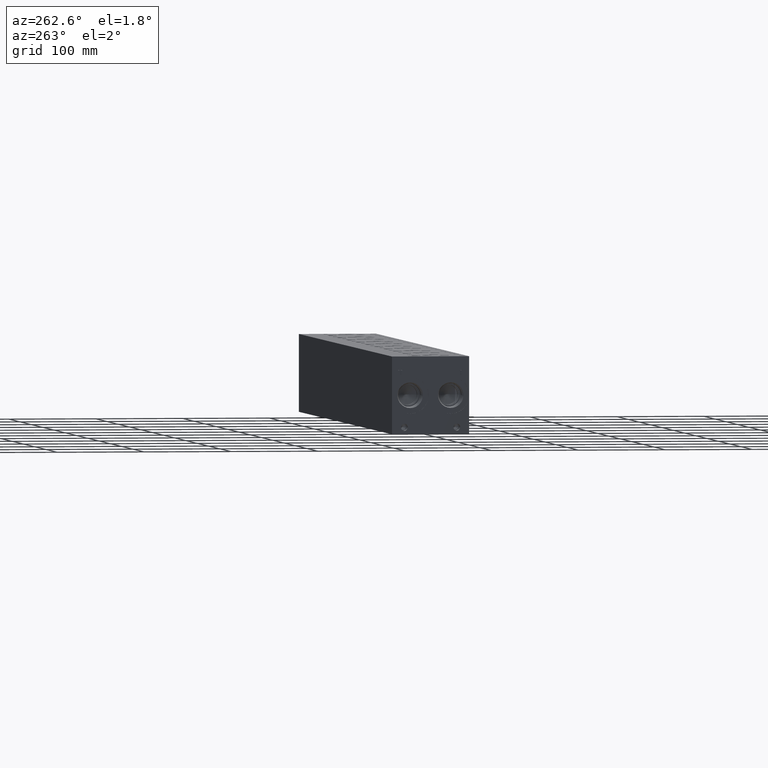
[diagram: clean part render]
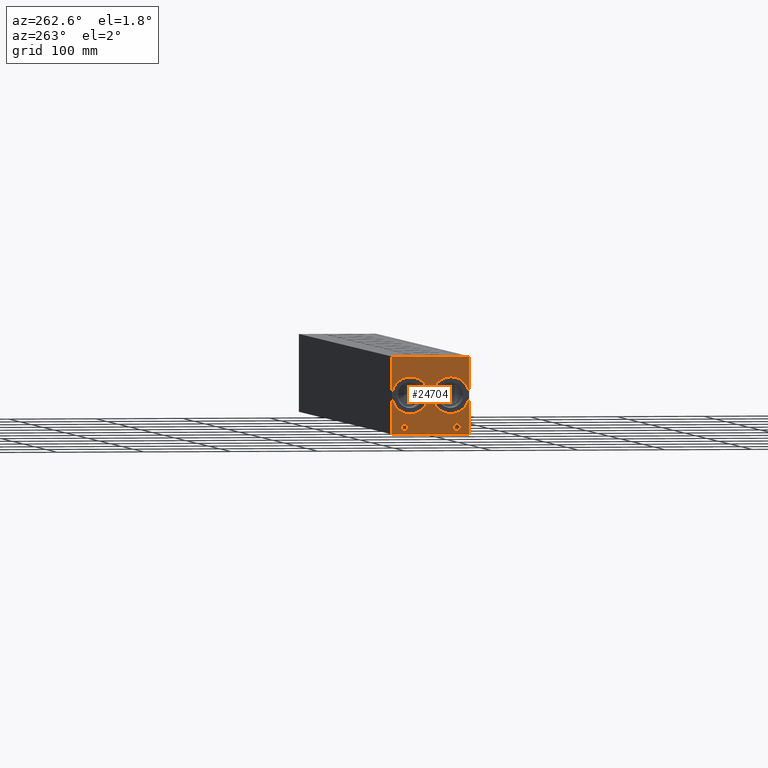
[diagram: same view with one face highlighted and labeled with its STEP entity id]
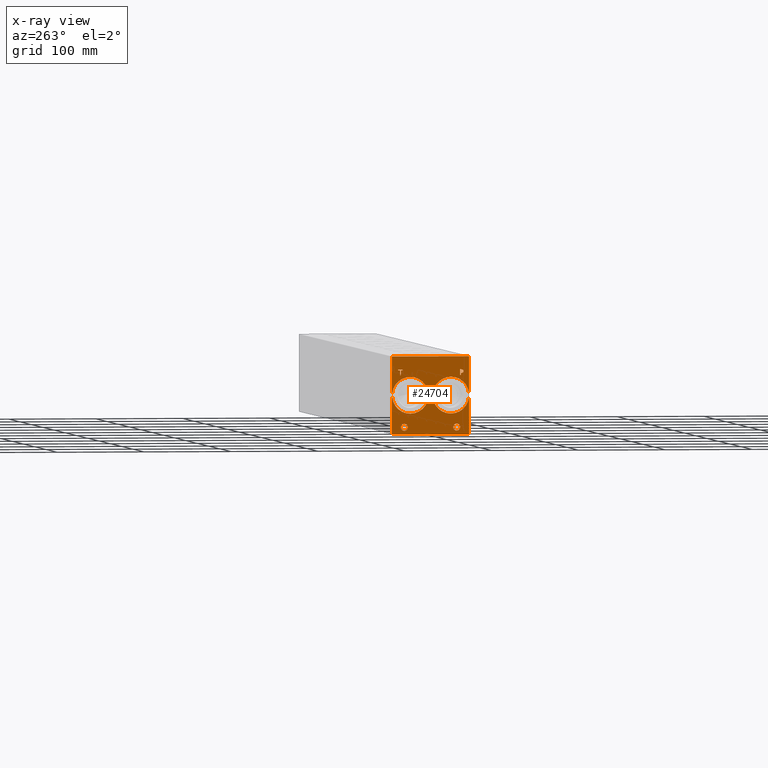
[diagram: x-ray of the same camera — body ghosted, the highlighted face saturated]
A machine part, auxiliary view. The second image highlights one B-rep face of the part: STEP entity #24704.
The next image is the same camera in x-ray: the body ghosted, the highlighted face saturated — about 0% of this face is hidden behind the body in this view.
In plain terms, the highlighted planar face has unit normal (-1, 0, 0).
Its self-contained STEP definition (entity closure, byte-faithful):
#768=CIRCLE('',#25862,21.0185);
#769=CIRCLE('',#25863,21.0185);
#770=CIRCLE('',#25864,21.0185);
#771=CIRCLE('',#25865,21.0185);
#772=CIRCLE('',#25866,3.9624);
#773=CIRCLE('',#25867,3.9624);
#774=CIRCLE('',#25868,3.9624);
#775=CIRCLE('',#25869,3.9624);
#2147=B_SPLINE_CURVE_WITH_KNOTS('',2,(#40573,#40574,#40575,#40576),
 .UNSPECIFIED.,.F.,.F.,(3,1,3),(0.,1.,2.),.UNSPECIFIED.);
#2149=B_SPLINE_CURVE_WITH_KNOTS('',2,(#40594,#40595,#40596,#40597),
 .UNSPECIFIED.,.F.,.F.,(3,1,3),(0.,1.,2.),.UNSPECIFIED.);
#2151=B_SPLINE_CURVE_WITH_KNOTS('',2,(#40643,#40644,#40645,#40646),
 .UNSPECIFIED.,.F.,.F.,(3,1,3),(0.,1.,2.),.UNSPECIFIED.);
#2153=B_SPLINE_CURVE_WITH_KNOTS('',2,(#40661,#40662,#40663,#40664),
 .UNSPECIFIED.,.F.,.F.,(3,1,3),(0.,1.,2.),.UNSPECIFIED.);
#2300=FACE_BOUND('',#4634,.T.);
#2301=FACE_BOUND('',#4635,.T.);
#2302=FACE_BOUND('',#4636,.T.);
#2303=FACE_BOUND('',#4637,.T.);
#2304=FACE_BOUND('',#4638,.T.);
#2305=FACE_BOUND('',#4639,.T.);
#3200=FACE_OUTER_BOUND('',#4633,.T.);
#4633=EDGE_LOOP('',(#19454,#19455,#19456,#19457));
#4634=EDGE_LOOP('',(#19458,#19459,#19460,#19461,#19462,#19463,#19464,#19465));
#4635=EDGE_LOOP('',(#19466,#19467));
#4636=EDGE_LOOP('',(#19468,#19469));
#4637=EDGE_LOOP('',(#19470,#19471));
#4638=EDGE_LOOP('',(#19472,#19473));
#4639=EDGE_LOOP('',(#19474,#19475,#19476,#19477,#19478,#19479,#19480,#19481,
#19482));
#5473=LINE('',#33498,#7521);
#6822=LINE('',#40200,#8870);
#6826=LINE('',#40208,#8874);
#6829=LINE('',#40214,#8877);
#6832=LINE('',#40220,#8880);
#6835=LINE('',#40226,#8883);
#6838=LINE('',#40232,#8886);
#6841=LINE('',#40238,#8889);
#6844=LINE('',#40243,#8892);
#6897=LINE('',#40606,#8945);
#6900=LINE('',#40612,#8948);
#6903=LINE('',#40618,#8951);
#6906=LINE('',#40624,#8954);
#6909=LINE('',#40630,#8957);
#6913=LINE('',#40672,#8961);
#6914=LINE('',#40674,#8962);
#6915=LINE('',#40675,#8963);
#7521=VECTOR('',#27412,10.);
#8870=VECTOR('',#29715,10.);
#8874=VECTOR('',#29721,10.);
#8877=VECTOR('',#29726,10.);
#8880=VECTOR('',#29731,10.);
#8883=VECTOR('',#29736,10.);
#8886=VECTOR('',#29741,10.);
#8889=VECTOR('',#29746,10.);
#8892=VECTOR('',#29751,10.);
#8945=VECTOR('',#29850,10.);
#8948=VECTOR('',#29855,10.);
#8951=VECTOR('',#29860,10.);
#8954=VECTOR('',#29865,10.);
#8957=VECTOR('',#29870,10.);
#8961=VECTOR('',#29878,10.);
#8962=VECTOR('',#29879,10.);
#8963=VECTOR('',#29880,10.);
#9555=VERTEX_POINT('',#33491);
#9558=VERTEX_POINT('',#33496);
#10817=VERTEX_POINT('',#40198);
#10818=VERTEX_POINT('',#40199);
#10821=VERTEX_POINT('',#40207);
#10823=VERTEX_POINT('',#40213);
#10825=VERTEX_POINT('',#40219);
#10827=VERTEX_POINT('',#40225);
#10829=VERTEX_POINT('',#40231);
#10831=VERTEX_POINT('',#40237);
#10889=VERTEX_POINT('',#40571);
#10890=VERTEX_POINT('',#40572);
#10893=VERTEX_POINT('',#40593);
#10895=VERTEX_POINT('',#40605);
#10897=VERTEX_POINT('',#40611);
#10899=VERTEX_POINT('',#40617);
#10901=VERTEX_POINT('',#40623);
#10903=VERTEX_POINT('',#40629);
#10905=VERTEX_POINT('',#40642);
#10907=VERTEX_POINT('',#40671);
#10908=VERTEX_POINT('',#40673);
#10909=VERTEX_POINT('',#40676);
#10910=VERTEX_POINT('',#40677);
#10911=VERTEX_POINT('',#40680);
#10912=VERTEX_POINT('',#40681);
#10913=VERTEX_POINT('',#40684);
#10914=VERTEX_POINT('',#40685);
#10915=VERTEX_POINT('',#40688);
#10916=VERTEX_POINT('',#40689);
#12055=EDGE_CURVE('',#9555,#9558,#5473,.T.);
#13904=EDGE_CURVE('',#10817,#10818,#6822,.T.);
#13908=EDGE_CURVE('',#10821,#10817,#6826,.T.);
#13911=EDGE_CURVE('',#10823,#10821,#6829,.T.);
#13914=EDGE_CURVE('',#10825,#10823,#6832,.T.);
#13917=EDGE_CURVE('',#10827,#10825,#6835,.T.);
#13920=EDGE_CURVE('',#10829,#10827,#6838,.T.);
#13923=EDGE_CURVE('',#10831,#10829,#6841,.T.);
#13926=EDGE_CURVE('',#10818,#10831,#6844,.T.);
#14008=EDGE_CURVE('',#10889,#10890,#2147,.T.);
#14012=EDGE_CURVE('',#10893,#10889,#2149,.T.);
#14015=EDGE_CURVE('',#10895,#10893,#6897,.T.);
#14018=EDGE_CURVE('',#10897,#10895,#6900,.T.);
#14021=EDGE_CURVE('',#10899,#10897,#6903,.T.);
#14024=EDGE_CURVE('',#10901,#10899,#6906,.T.);
#14027=EDGE_CURVE('',#10903,#10901,#6909,.T.);
#14030=EDGE_CURVE('',#10905,#10903,#2151,.T.);
#14033=EDGE_CURVE('',#10890,#10905,#2153,.T.);
#14035=EDGE_CURVE('',#10907,#9555,#6913,.T.);
#14036=EDGE_CURVE('',#10908,#9558,#6914,.T.);
#14037=EDGE_CURVE('',#10907,#10908,#6915,.T.);
#14038=EDGE_CURVE('',#10909,#10910,#768,.T.);
#14039=EDGE_CURVE('',#10910,#10909,#769,.T.);
#14040=EDGE_CURVE('',#10911,#10912,#770,.T.);
#14041=EDGE_CURVE('',#10912,#10911,#771,.T.);
#14042=EDGE_CURVE('',#10913,#10914,#772,.T.);
#14043=EDGE_CURVE('',#10914,#10913,#773,.T.);
#14044=EDGE_CURVE('',#10915,#10916,#774,.T.);
#14045=EDGE_CURVE('',#10916,#10915,#775,.T.);
#19454=ORIENTED_EDGE('',*,*,#14035,.T.);
#19455=ORIENTED_EDGE('',*,*,#12055,.T.);
#19456=ORIENTED_EDGE('',*,*,#14036,.F.);
#19457=ORIENTED_EDGE('',*,*,#14037,.F.);
#19458=ORIENTED_EDGE('',*,*,#13904,.T.);
#19459=ORIENTED_EDGE('',*,*,#13926,.T.);
#19460=ORIENTED_EDGE('',*,*,#13923,.T.);
#19461=ORIENTED_EDGE('',*,*,#13920,.T.);
#19462=ORIENTED_EDGE('',*,*,#13917,.T.);
#19463=ORIENTED_EDGE('',*,*,#13914,.T.);
#19464=ORIENTED_EDGE('',*,*,#13911,.T.);
#19465=ORIENTED_EDGE('',*,*,#13908,.T.);
#19466=ORIENTED_EDGE('',*,*,#14038,.T.);
#19467=ORIENTED_EDGE('',*,*,#14039,.T.);
#19468=ORIENTED_EDGE('',*,*,#14040,.T.);
#19469=ORIENTED_EDGE('',*,*,#14041,.T.);
#19470=ORIENTED_EDGE('',*,*,#14042,.T.);
#19471=ORIENTED_EDGE('',*,*,#14043,.T.);
#19472=ORIENTED_EDGE('',*,*,#14044,.T.);
#19473=ORIENTED_EDGE('',*,*,#14045,.T.);
#19474=ORIENTED_EDGE('',*,*,#14008,.T.);
#19475=ORIENTED_EDGE('',*,*,#14033,.T.);
#19476=ORIENTED_EDGE('',*,*,#14030,.T.);
#19477=ORIENTED_EDGE('',*,*,#14027,.T.);
#19478=ORIENTED_EDGE('',*,*,#14024,.T.);
#19479=ORIENTED_EDGE('',*,*,#14021,.T.);
#19480=ORIENTED_EDGE('',*,*,#14018,.T.);
#19481=ORIENTED_EDGE('',*,*,#14015,.T.);
#19482=ORIENTED_EDGE('',*,*,#14012,.T.);
#23081=PLANE('',#25861);
#24704=ADVANCED_FACE('',(#3200,#2300,#2301,#2302,#2303,#2304,#2305),#23081,
 .T.);
#25861=AXIS2_PLACEMENT_3D('',#40670,#29876,#29877);
#25862=AXIS2_PLACEMENT_3D('',#40678,#29881,#29882);
#25863=AXIS2_PLACEMENT_3D('',#40679,#29883,#29884);
#25864=AXIS2_PLACEMENT_3D('',#40682,#29885,#29886);
#25865=AXIS2_PLACEMENT_3D('',#40683,#29887,#29888);
#25866=AXIS2_PLACEMENT_3D('',#40686,#29889,#29890);
#25867=AXIS2_PLACEMENT_3D('',#40687,#29891,#29892);
#25868=AXIS2_PLACEMENT_3D('',#40690,#29893,#29894);
#25869=AXIS2_PLACEMENT_3D('',#40691,#29895,#29896);
#27412=DIRECTION('',(0.,0.,1.));
#29715=DIRECTION('',(0.,1.,1.0524411238433E-14));
#29721=DIRECTION('',(0.,3.17280044688052E-15,-1.));
#29726=DIRECTION('',(0.,1.,4.16909044227778E-15));
#29731=DIRECTION('',(0.,0.,-1.));
#29736=DIRECTION('',(0.,-1.,-3.47984565141734E-15));
#29741=DIRECTION('',(0.,0.,1.));
#29746=DIRECTION('',(0.,1.,0.));
#29751=DIRECTION('',(0.,-3.17280044688052E-15,1.));
#29850=DIRECTION('',(0.,-1.,-5.56775304226775E-15));
#29855=DIRECTION('',(0.,-3.14708893596576E-15,1.));
#29860=DIRECTION('',(0.,1.,0.));
#29865=DIRECTION('',(0.,3.75218139804999E-15,-1.));
#29870=DIRECTION('',(0.,1.,1.24172909575755E-14));
#29876=DIRECTION('center_axis',(-1.,0.,0.));
#29877=DIRECTION('ref_axis',(0.,-1.,0.));
#29878=DIRECTION('',(0.,-1.,0.));
#29879=DIRECTION('',(0.,-1.,0.));
#29880=DIRECTION('',(0.,0.,1.));
#29881=DIRECTION('center_axis',(1.,0.,0.));
#29882=DIRECTION('ref_axis',(0.,0.,1.));
#29883=DIRECTION('center_axis',(1.,0.,0.));
#29884=DIRECTION('ref_axis',(0.,0.,1.));
#29885=DIRECTION('center_axis',(1.,0.,0.));
#29886=DIRECTION('ref_axis',(0.,0.,1.));
#29887=DIRECTION('center_axis',(1.,0.,0.));
#29888=DIRECTION('ref_axis',(0.,0.,1.));
#29889=DIRECTION('center_axis',(1.,0.,0.));
#29890=DIRECTION('ref_axis',(0.,1.,0.));
#29891=DIRECTION('center_axis',(1.,0.,0.));
#29892=DIRECTION('ref_axis',(0.,1.,0.));
#29893=DIRECTION('center_axis',(1.,0.,0.));
#29894=DIRECTION('ref_axis',(0.,1.,0.));
#29895=DIRECTION('center_axis',(1.,0.,0.));
#29896=DIRECTION('ref_axis',(0.,1.,0.));
#33491=CARTESIAN_POINT('',(0.,0.,0.));
#33496=CARTESIAN_POINT('',(0.,0.,88.9));
#33498=CARTESIAN_POINT('',(0.,0.,0.));
#40198=CARTESIAN_POINT('',(0.,78.787084728547,67.46875));
#40199=CARTESIAN_POINT('',(0.,79.6310069200865,67.46875));
#40200=CARTESIAN_POINT('',(0.,83.8435423642731,67.46875));
#40207=CARTESIAN_POINT('',(0.,78.787084728547,73.0674533194815));
#40208=CARTESIAN_POINT('',(0.,78.7870847285471,36.5337266597407));
#40213=CARTESIAN_POINT('',(0.,76.6566957816119,73.0674533194815));
#40214=CARTESIAN_POINT('',(0.,82.7783478908058,73.0674533194815));
#40219=CARTESIAN_POINT('',(0.,76.6566957816119,73.8187499046325));
#40220=CARTESIAN_POINT('',(0.,76.6566957816119,36.9093749523163));
#40225=CARTESIAN_POINT('',(0.,81.7613958670216,73.8187499046326));
#40226=CARTESIAN_POINT('',(0.,85.3306979335107,73.8187499046326));
#40231=CARTESIAN_POINT('',(0.,81.7613958670216,73.0674533194815));
#40232=CARTESIAN_POINT('',(0.,81.7613958670216,36.5337266597408));
#40237=CARTESIAN_POINT('',(0.,79.6310069200865,73.0674533194815));
#40238=CARTESIAN_POINT('',(0.,84.2655034600432,73.0674533194815));
#40243=CARTESIAN_POINT('',(0.,79.6310069200866,33.734375));
#40571=CARTESIAN_POINT('',(0.,7.21193279764059,73.4225181439707));
#40572=CARTESIAN_POINT('',(0.,6.455490345468,71.9044873726039));
#40573=CARTESIAN_POINT('Ctrl Pts',(0.,7.21193279764059,73.4225181439707));
#40574=CARTESIAN_POINT('Ctrl Pts',(0.,6.85686797315142,73.1806623939563));
#40575=CARTESIAN_POINT('Ctrl Pts',(0.,6.455490345468,72.4345116758269));
#40576=CARTESIAN_POINT('Ctrl Pts',(0.,6.455490345468,71.9044873726039));
#40593=CARTESIAN_POINT('',(0.,8.87404784561168,73.8187499046325));
#40594=CARTESIAN_POINT('Ctrl Pts',(0.,8.87404784561168,73.8187499046325));
#40595=CARTESIAN_POINT('Ctrl Pts',(0.,8.30800247323763,73.8187499046325));
#40596=CARTESIAN_POINT('Ctrl Pts',(0.,7.51553895191395,73.6334986918556));
#40597=CARTESIAN_POINT('Ctrl Pts',(0.,7.21193279764059,73.4225181439707));
#40605=CARTESIAN_POINT('',(0.,10.4692666223022,73.8187499046326));
#40606=CARTESIAN_POINT('',(0.,49.6846333111509,73.8187499046328));
#40611=CARTESIAN_POINT('',(0.,10.4692666223022,67.46875));
#40612=CARTESIAN_POINT('',(0.,10.4692666223023,33.7343749999999));
#40617=CARTESIAN_POINT('',(0.,9.62534443076272,67.46875));
#40618=CARTESIAN_POINT('',(0.,49.2626722153814,67.46875));
#40623=CARTESIAN_POINT('',(0.,9.62534443076271,69.8358488299279));
#40624=CARTESIAN_POINT('',(0.,9.62534443076284,34.9179244149638));
#40629=CARTESIAN_POINT('',(0.,8.91006891476277,69.8358488299278));
#40630=CARTESIAN_POINT('',(0.,48.9050344573809,69.8358488299283));
#40642=CARTESIAN_POINT('',(0.,7.01124398379889,70.4945198086904));
#40643=CARTESIAN_POINT('Ctrl Pts',(0.,7.01124398379889,70.4945198086904));
#40644=CARTESIAN_POINT('Ctrl Pts',(0.,7.34057947318016,70.1703301863307));
#40645=CARTESIAN_POINT('Ctrl Pts',(0.,8.2308144679139,69.8358488299278));
#40646=CARTESIAN_POINT('Ctrl Pts',(0.,8.91006891476277,69.8358488299278));
#40661=CARTESIAN_POINT('Ctrl Pts',(0.,6.455490345468,71.9044873726039));
#40662=CARTESIAN_POINT('Ctrl Pts',(0.,6.455490345468,71.4928180108773));
#40663=CARTESIAN_POINT('Ctrl Pts',(0.,6.7488047656982,70.7518131597695));
#40664=CARTESIAN_POINT('Ctrl Pts',(0.,7.01124398379889,70.4945198086904));
#40670=CARTESIAN_POINT('Origin',(0.,88.9,0.));
#40671=CARTESIAN_POINT('',(0.,88.9,0.));
#40672=CARTESIAN_POINT('',(0.,88.9,0.));
#40673=CARTESIAN_POINT('',(0.,88.9,88.9));
#40674=CARTESIAN_POINT('',(0.,88.9,88.9));
#40675=CARTESIAN_POINT('',(0.,88.9,0.));
#40676=CARTESIAN_POINT('',(0.,21.082,65.4685));
#40677=CARTESIAN_POINT('',(0.,21.082,23.4315));
#40678=CARTESIAN_POINT('Origin',(0.,21.082,44.45));
#40679=CARTESIAN_POINT('Origin',(0.,21.082,44.45));
#40680=CARTESIAN_POINT('',(0.,67.818,65.4685));
#40681=CARTESIAN_POINT('',(0.,67.818,23.4315));
#40682=CARTESIAN_POINT('Origin',(0.,67.818,44.45));
#40683=CARTESIAN_POINT('Origin',(0.,67.818,44.45));
#40684=CARTESIAN_POINT('',(0.,18.2372,7.92479999999999));
#40685=CARTESIAN_POINT('',(0.,10.3124,7.92479999999999));
#40686=CARTESIAN_POINT('Origin',(0.,14.2748,7.92479999999999));
#40687=CARTESIAN_POINT('Origin',(0.,14.2748,7.92479999999999));
#40688=CARTESIAN_POINT('',(0.,78.5876,7.92479999999999));
#40689=CARTESIAN_POINT('',(0.,70.6628,7.92479999999999));
#40690=CARTESIAN_POINT('Origin',(0.,74.6252,7.92479999999999));
#40691=CARTESIAN_POINT('Origin',(0.,74.6252,7.92479999999999));